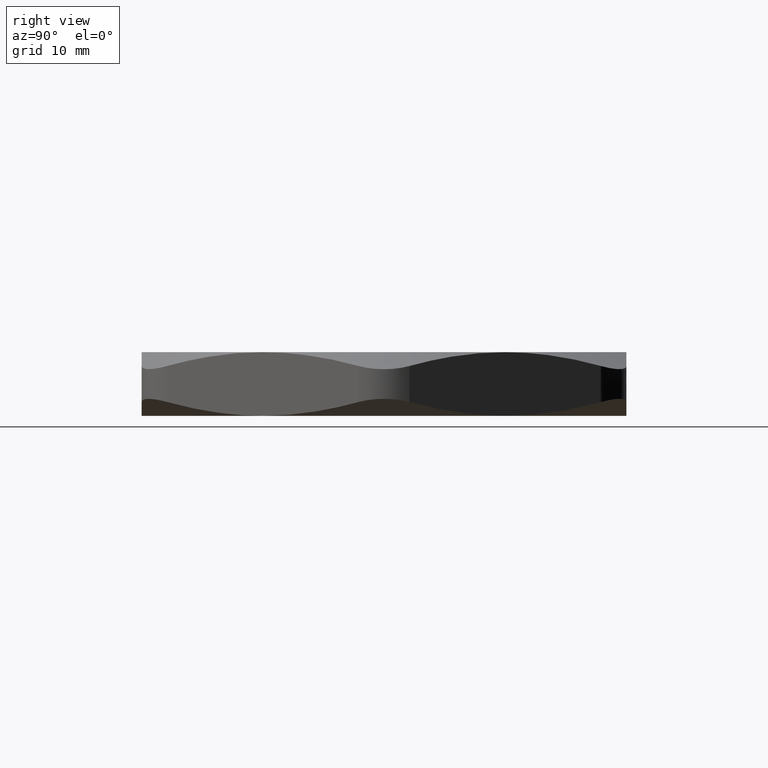
[diagram: clean part render]
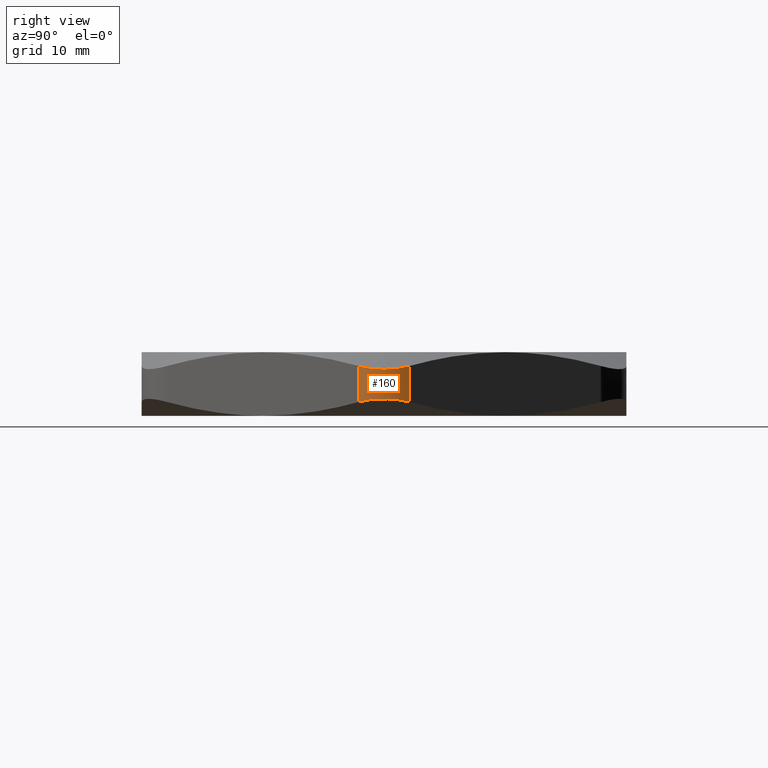
[diagram: same view with one face highlighted and labeled with its STEP entity id]
A machine part, right view. The second image highlights one B-rep face of the part: STEP entity #160.
In plain terms, the highlighted cylindrical surface (partial cylindrical patch) has radius 6.35 mm, axis along (0, 0, -1).
Its self-contained STEP definition (entity closure, byte-faithful):
#145 = ORIENTED_EDGE ( 'NONE', *, *, #2584, .F. ) ;
#146 = ORIENTED_EDGE ( 'NONE', *, *, #2828, .F. ) ;
#147 = ORIENTED_EDGE ( 'NONE', *, *, #2721, .F. ) ;
#148 = ORIENTED_EDGE ( 'NONE', *, *, #2557, .F. ) ;
#149 = ORIENTED_EDGE ( 'NONE', *, *, #2759, .F. ) ;
#150 = EDGE_LOOP ( 'NONE', ( #149, #146, #147, #148, #145 ) ) ;
#160 = ADVANCED_FACE ( 'NONE', ( #205 ), #204, .T. ) ;
#200 = DIRECTION ( 'NONE',  ( -1.000000000000000000, 0.0000000000000000000, 0.0000000000000000000 ) ) ;
#201 = DIRECTION ( 'NONE',  ( 0.0000000000000000000, 0.0000000000000000000, -1.000000000000000000 ) ) ;
#202 = AXIS2_PLACEMENT_3D ( 'NONE', #209, #201, #200 ) ;
#204 = CYLINDRICAL_SURFACE ( 'NONE', #202, 0.2499999999999999200 ) ;
#205 = FACE_OUTER_BOUND ( 'NONE', #150, .T. ) ;
#209 = CARTESIAN_POINT ( 'NONE',  ( 1.073871500692704000, 2.561107494060246600E-016, 0.3100000000000000000 ) ) ;
#699 = VERTEX_POINT ( 'NONE', #1104 ) ;
#700 = VERTEX_POINT ( 'NONE', #1103 ) ;
#1103 = CARTESIAN_POINT ( 'NONE',  ( 1.290377851638813600, 0.1250000000000003600, 0.2427859541343050100 ) ) ;
#1104 = CARTESIAN_POINT ( 'NONE',  ( 1.323871500692703800, -1.232579635649854100E-024, 0.2269357503463525200 ) ) ;
#1575 = CARTESIAN_POINT ( 'NONE',  ( 1.290377851638813600, 0.1250000000000002800, 0.06721404586569496000 ) ) ;
#1576 = DIRECTION ( 'NONE',  ( 0.0000000000000000000, 0.0000000000000000000, -1.000000000000000000 ) ) ;
#1577 = VECTOR ( 'NONE', #1576, 39.37007874015748100 ) ;
#1578 = CARTESIAN_POINT ( 'NONE',  ( 1.290377851638813600, 0.1250000000000003100, 0.3100000000000000000 ) ) ;
#1579 = LINE ( 'NONE', #1578, #1577 ) ;
#1587 = CARTESIAN_POINT ( 'NONE',  ( 1.323871500692704400, 0.01095095147729039700, 0.2269357503463524700 ) ) ;
#1588 = CARTESIAN_POINT ( 'NONE',  ( 1.323871500692703800, -1.232579635649854100E-024, 0.2269357503463525200 ) ) ;
#1589 = B_SPLINE_CURVE_WITH_KNOTS ( 'NONE', 3,
 ( #1588, #1587, #1643, #1642, #1641, #1640, #1639, #1638 ),
 .UNSPECIFIED., .F., .F.,
 ( 4, 2, 2, 4 ),
 ( 0.003343581398575299100, 0.004176957635011804700, 0.005010333871448310700, 0.006677086344321323700 ),
 .UNSPECIFIED. ) ;
#1638 = CARTESIAN_POINT ( 'NONE',  ( 1.290377851638813600, 0.1250000000000003600, 0.2427859541343050100 ) ) ;
#1639 = CARTESIAN_POINT ( 'NONE',  ( 1.301163024300264800, 0.1063195329819646200, 0.2376280449449062200 ) ) ;
#1640 = CARTESIAN_POINT ( 'NONE',  ( 1.309608273902644400, 0.08602256121026832800, 0.2336403273867144700 ) ) ;
#1641 = CARTESIAN_POINT ( 'NONE',  ( 1.318085377249127700, 0.05456655859989943700, 0.2296491859462562200 ) ) ;
#1642 = CARTESIAN_POINT ( 'NONE',  ( 1.320238384401354300, 0.04387041525387968400, 0.2286388179600905800 ) ) ;
#1643 = CARTESIAN_POINT ( 'NONE',  ( 1.323141469423208900, 0.02203945126250706600, 0.2272774143254681600 ) ) ;
#1896 = CARTESIAN_POINT ( 'NONE',  ( 1.290377851638813600, -0.1249999999999997100, 0.06721404586569496000 ) ) ;
#1897 = CARTESIAN_POINT ( 'NONE',  ( 1.301179324903586300, -0.1062912995088180400, 0.07237975066804328000 ) ) ;
#1898 = CARTESIAN_POINT ( 'NONE',  ( 1.309633521215260100, -0.08596173029005486900, 0.07637160150552650700 ) ) ;
#1899 = CARTESIAN_POINT ( 'NONE',  ( 1.318111162438620100, -0.05445433847798835500, 0.08036293289793382300 ) ) ;
#1900 = CARTESIAN_POINT ( 'NONE',  ( 1.320262292194869700, -0.04374042279998511400, 0.08137240177445197200 ) ) ;
#1901 = CARTESIAN_POINT ( 'NONE',  ( 1.323156963948952000, -0.02187246060466808600, 0.08272984357175608400 ) ) ;
#1902 = CARTESIAN_POINT ( 'NONE',  ( 1.323880134261621300, -0.01076827507157215000, 0.08306829295617798600 ) ) ;
#1903 = CARTESIAN_POINT ( 'NONE',  ( 1.323862709342718900, 0.01116549169178957500, 0.08306013245854915200 ) ) ;
#1904 = CARTESIAN_POINT ( 'NONE',  ( 1.323135509530177800, 0.02208131324083308100, 0.08271979029129168700 ) ) ;
#1905 = CARTESIAN_POINT ( 'NONE',  ( 1.320246686176114600, 0.04381094011982417100, 0.08136507564973521900 ) ) ;
#1906 = CARTESIAN_POINT ( 'NONE',  ( 1.318056817555447200, 0.05471080628804193800, 0.08033741714334199900 ) ) ;
#1907 = CARTESIAN_POINT ( 'NONE',  ( 1.309485597971105100, 0.08640001358719517900, 0.07630181465680784000 ) ) ;
#1908 = CARTESIAN_POINT ( 'NONE',  ( 1.301176764405753900, 0.1062957344211558100, 0.07237852613360940000 ) ) ;
#1909 = CARTESIAN_POINT ( 'NONE',  ( 1.290377851638813600, 0.1250000000000002800, 0.06721404586569496000 ) ) ;
#1912 = B_SPLINE_CURVE_WITH_KNOTS ( 'NONE', 3,
 ( #1909, #1908, #1907, #1906, #1905, #1904, #1903, #1902, #1901, #1900, #1899, #1898, #1897, #1896 ),
 .UNSPECIFIED., .F., .F.,
 ( 4, 2, 2, 2, 2, 2, 4 ),
 ( 0.0000000000000000000, 0.001669271586080330300, 0.002503907379120495500, 0.003338543172160661400, 0.004173178965200827700, 0.005007814758240991900, 0.006677086344321322800 ),
 .UNSPECIFIED. ) ;
#1960 = CARTESIAN_POINT ( 'NONE',  ( 1.323871500692703800, -1.232579635649854100E-024, 0.2269357503463525200 ) ) ;
#1961 = CARTESIAN_POINT ( 'NONE',  ( 1.323871500692704200, -0.01098405379685871800, 0.2269357503463525200 ) ) ;
#1962 = CARTESIAN_POINT ( 'NONE',  ( 1.323150731314133500, -0.02191688359895175400, 0.2272730796241370100 ) ) ;
#1963 = CARTESIAN_POINT ( 'NONE',  ( 1.320270611761771700, -0.04368023203091912100, 0.2286236963736375000 ) ) ;
#1964 = CARTESIAN_POINT ( 'NONE',  ( 1.318082992759607800, -0.05459731993352139000, 0.2296502803749607700 ) ) ;
#1965 = CARTESIAN_POINT ( 'NONE',  ( 1.309510802919501100, -0.08634002578141490600, 0.2336862750730251400 ) ) ;
#1966 = CARTESIAN_POINT ( 'NONE',  ( 1.301193061145004200, -0.1062675076407764600, 0.2376136801013973000 ) ) ;
#1967 = CARTESIAN_POINT ( 'NONE',  ( 1.290377851638813600, -0.1249999999999997600, 0.2427859541343050700 ) ) ;
#1970 = B_SPLINE_CURVE_WITH_KNOTS ( 'NONE', 3,
 ( #1967, #1966, #1965, #1964, #1963, #1962, #1961, #1960 ),
 .UNSPECIFIED., .F., .F.,
 ( 4, 2, 2, 4 ),
 ( 4.336808689942017700E-019, 0.001671790699287650200, 0.002507686048931474200, 0.003343581398575299100 ),
 .UNSPECIFIED. ) ;
#2110 = DIRECTION ( 'NONE',  ( 0.0000000000000000000, 0.0000000000000000000, 1.000000000000000000 ) ) ;
#2111 = VECTOR ( 'NONE', #2110, 39.37007874015748100 ) ;
#2112 = CARTESIAN_POINT ( 'NONE',  ( 1.290377851638813600, -0.1249999999999996300, 0.3100000000000000000 ) ) ;
#2117 = LINE ( 'NONE', #2112, #2111 ) ;
#2154 = CARTESIAN_POINT ( 'NONE',  ( 1.290377851638813600, -0.1249999999999997100, 0.06721404586569496000 ) ) ;
#2278 = CARTESIAN_POINT ( 'NONE',  ( 1.290377851638813600, -0.1249999999999997600, 0.2427859541343050700 ) ) ;
#2557 = EDGE_CURVE ( 'NONE', #700, #2558, #1579, .T. ) ;
#2558 = VERTEX_POINT ( 'NONE', #1575 ) ;
#2584 = EDGE_CURVE ( 'NONE', #699, #700, #1589, .T. ) ;
#2721 = EDGE_CURVE ( 'NONE', #2558, #2839, #1912, .T. ) ;
#2759 = EDGE_CURVE ( 'NONE', #2932, #699, #1970, .T. ) ;
#2828 = EDGE_CURVE ( 'NONE', #2839, #2932, #2117, .T. ) ;
#2839 = VERTEX_POINT ( 'NONE', #2154 ) ;
#2932 = VERTEX_POINT ( 'NONE', #2278 ) ;